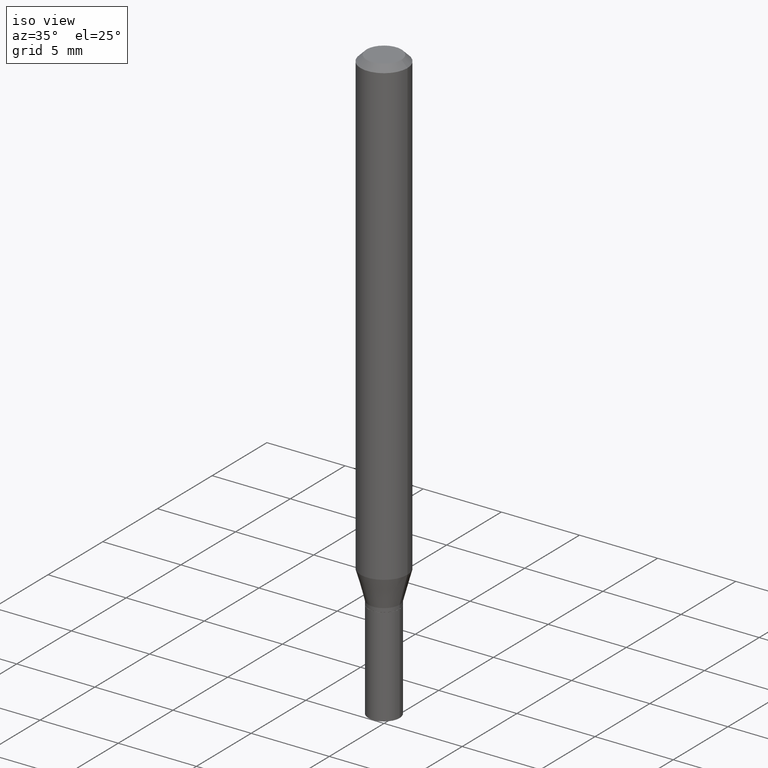
[diagram: clean part render]
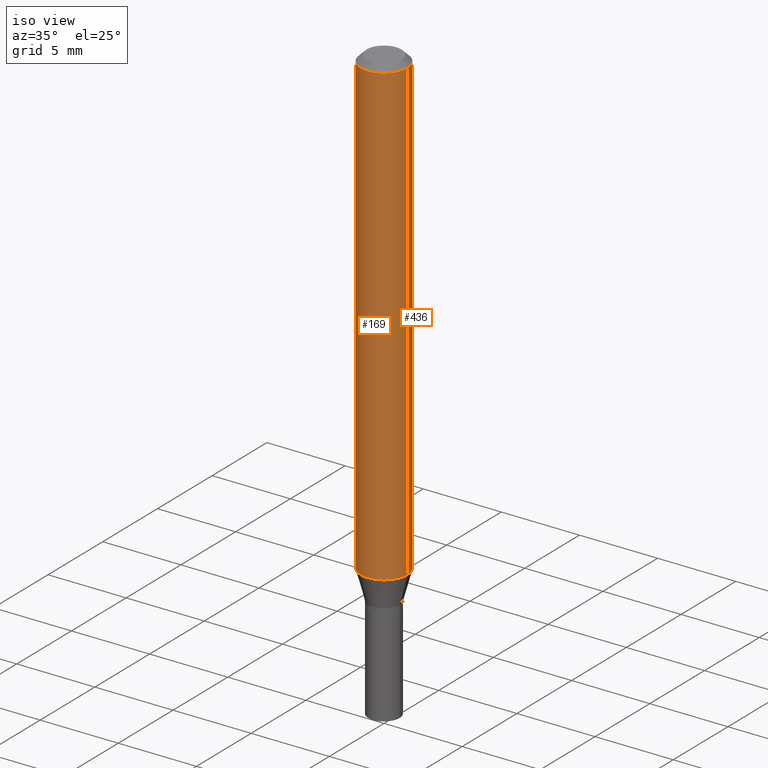
[diagram: same view with one multi-face feature highlighted, each face labeled with its STEP entity id]
A machine part, iso view. The highlighted faces form ONE feature: a constant-radius fillet chain: 2 tangent blend faces with common blend radius 1.4999 mm. The faces share edges in the B-rep.
Their STEP definitions:
[1] entity #436 (Cylinder):
#1 = VERTEX_POINT ( 'NONE', #180 ) ;
#4 = CIRCLE ( 'NONE', #404, 0.05904999999999999832 ) ;
#14 = ORIENTED_EDGE ( 'NONE', *, *, #362, .F. ) ;
#29 = DIRECTION ( 'NONE',  ( -2.445468806185136877E-29, 3.491481338843145188E-15, 1.000000000000000000 ) ) ;
#35 = AXIS2_PLACEMENT_3D ( 'NONE', #417, #253, #411 ) ;
#57 = CARTESIAN_POINT ( 'NONE',  ( -0.05905000000000002608, -1.646471236356701803E-15, -0.01499999999999999944 ) ) ;
#64 = CYLINDRICAL_SURFACE ( 'NONE', #35, 0.05905000000000000526 ) ;
#75 = DIRECTION ( 'NONE',  ( -2.445468806185136597E-29, 3.491481338843145583E-15, 1.000000000000000000 ) ) ;
#77 = EDGE_CURVE ( 'NONE', #1, #215, #268, .T. ) ;
#83 = DIRECTION ( 'NONE',  ( -2.445468806185136877E-29, 3.491481338843145188E-15, 1.000000000000000000 ) ) ;
#85 = CARTESIAN_POINT ( 'NONE',  ( -0.05905000000000000526, 4.195754854663391971E-16, -2.904631170795522242E-30 ) ) ;
#95 = AXIS2_PLACEMENT_3D ( 'NONE', #136, #75, #355 ) ;
#113 = CARTESIAN_POINT ( 'NONE',  ( 2.857477964771687293E-29, -4.079721223563434330E-15, -1.168478599090893244 ) ) ;
#130 = CARTESIAN_POINT ( 'NONE',  ( 0.05904999999999999832, -4.492065169680809250E-15, -1.168478599090893244 ) ) ;
#136 = CARTESIAN_POINT ( 'NONE',  ( 3.668203209277705088E-31, -5.237222008264718399E-17, -0.01499999999999999944 ) ) ;
#143 = VERTEX_POINT ( 'NONE', #130 ) ;
#180 = CARTESIAN_POINT ( 'NONE',  ( -0.05904999999999999832, -3.660145738097095626E-15, -1.168478599090893244 ) ) ;
#210 = DIRECTION ( 'NONE',  ( -2.445468806185136597E-29, 3.491481338843145583E-15, 1.000000000000000000 ) ) ;
#215 = VERTEX_POINT ( 'NONE', #57 ) ;
#251 = VECTOR ( 'NONE', #83, 39.37007874015748143 ) ;
#253 = DIRECTION ( 'NONE',  ( -2.445468806185136597E-29, 3.491481338843145583E-15, 1.000000000000000000 ) ) ;
#255 = LINE ( 'NONE', #400, #251 ) ;
#268 = LINE ( 'NONE', #85, #299 ) ;
#280 = ORIENTED_EDGE ( 'NONE', *, *, #399, .F. ) ;
#299 = VECTOR ( 'NONE', #29, 39.37007874015748143 ) ;
#302 = ORIENTED_EDGE ( 'NONE', *, *, #77, .T. ) ;
#308 = CARTESIAN_POINT ( 'NONE',  ( 0.05905000000000001914, -4.647161662000214077E-16, -0.01499999999999999944 ) ) ;
#324 = VERTEX_POINT ( 'NONE', #308 ) ;
#334 = FACE_OUTER_BOUND ( 'NONE', #444, .T. ) ;
#338 = CIRCLE ( 'NONE', #95, 0.05905000000000001914 ) ;
#355 = DIRECTION ( 'NONE',  ( 1.000000000000000000, -6.982962677686266711E-15, 0.000000000000000000 ) ) ;
#362 = EDGE_CURVE ( 'NONE', #143, #324, #255, .T. ) ;
#395 = DIRECTION ( 'NONE',  ( 1.000000000000000000, -6.982962677686273021E-15, 0.000000000000000000 ) ) ;
#399 = EDGE_CURVE ( 'NONE', #324, #215, #338, .T. ) ;
#400 = CARTESIAN_POINT ( 'NONE',  ( 0.05905000000000000526, -4.123439461173741313E-16, 2.879382386107500571E-30 ) ) ;
#404 = AXIS2_PLACEMENT_3D ( 'NONE', #113, #210, #395 ) ;
#411 = DIRECTION ( 'NONE',  ( 1.000000000000000000, -6.982962677686267499E-15, 4.876176775795936353E-29 ) ) ;
#417 = CARTESIAN_POINT ( 'NONE',  ( 0.000000000000000000, 0.000000000000000000, 0.000000000000000000 ) ) ;
#436 = ADVANCED_FACE ( 'NONE', ( #334 ), #64, .T. ) ;
#444 = EDGE_LOOP ( 'NONE', ( #450, #302, #280, #14 ) ) ;
#450 = ORIENTED_EDGE ( 'NONE', *, *, #466, .T. ) ;
#466 = EDGE_CURVE ( 'NONE', #143, #1, #4, .T. ) ;
[2] entity #169 (Cylinder):
#1 = VERTEX_POINT ( 'NONE', #180 ) ;
#24 = CYLINDRICAL_SURFACE ( 'NONE', #351, 0.05905000000000000526 ) ;
#29 = DIRECTION ( 'NONE',  ( -2.445468806185136877E-29, 3.491481338843145188E-15, 1.000000000000000000 ) ) ;
#50 = CIRCLE ( 'NONE', #167, 0.05904999999999999832 ) ;
#55 = AXIS2_PLACEMENT_3D ( 'NONE', #287, #110, #290 ) ;
#57 = CARTESIAN_POINT ( 'NONE',  ( -0.05905000000000002608, -1.646471236356701803E-15, -0.01499999999999999944 ) ) ;
#61 = DIRECTION ( 'NONE',  ( 1.000000000000000000, -6.982962677686273021E-15, 0.000000000000000000 ) ) ;
#77 = EDGE_CURVE ( 'NONE', #1, #215, #268, .T. ) ;
#83 = DIRECTION ( 'NONE',  ( -2.445468806185136877E-29, 3.491481338843145188E-15, 1.000000000000000000 ) ) ;
#85 = CARTESIAN_POINT ( 'NONE',  ( -0.05905000000000000526, 4.195754854663391971E-16, -2.904631170795522242E-30 ) ) ;
#96 = DIRECTION ( 'NONE',  ( -2.445468806185136597E-29, 3.491481338843145583E-15, 1.000000000000000000 ) ) ;
#110 = DIRECTION ( 'NONE',  ( -2.445468806185136597E-29, 3.491481338843145583E-15, 1.000000000000000000 ) ) ;
#114 = ORIENTED_EDGE ( 'NONE', *, *, #410, .F. ) ;
#129 = DIRECTION ( 'NONE',  ( 1.000000000000000000, -6.982962677686267499E-15, 4.876176775795936353E-29 ) ) ;
#130 = CARTESIAN_POINT ( 'NONE',  ( 0.05904999999999999832, -4.492065169680809250E-15, -1.168478599090893244 ) ) ;
#143 = VERTEX_POINT ( 'NONE', #130 ) ;
#160 = DIRECTION ( 'NONE',  ( -2.445468806185136597E-29, 3.491481338843145583E-15, 1.000000000000000000 ) ) ;
#162 = CARTESIAN_POINT ( 'NONE',  ( 0.000000000000000000, 0.000000000000000000, 0.000000000000000000 ) ) ;
#167 = AXIS2_PLACEMENT_3D ( 'NONE', #214, #160, #61 ) ;
#169 = ADVANCED_FACE ( 'NONE', ( #409 ), #24, .T. ) ;
#180 = CARTESIAN_POINT ( 'NONE',  ( -0.05904999999999999832, -3.660145738097095626E-15, -1.168478599090893244 ) ) ;
#209 = ORIENTED_EDGE ( 'NONE', *, *, #263, .T. ) ;
#214 = CARTESIAN_POINT ( 'NONE',  ( 2.857477964771687293E-29, -4.079721223563434330E-15, -1.168478599090893244 ) ) ;
#215 = VERTEX_POINT ( 'NONE', #57 ) ;
#244 = EDGE_LOOP ( 'NONE', ( #360, #209, #385, #114 ) ) ;
#251 = VECTOR ( 'NONE', #83, 39.37007874015748143 ) ;
#255 = LINE ( 'NONE', #400, #251 ) ;
#263 = EDGE_CURVE ( 'NONE', #1, #143, #50, .T. ) ;
#268 = LINE ( 'NONE', #85, #299 ) ;
#287 = CARTESIAN_POINT ( 'NONE',  ( 3.668203209277705088E-31, -5.237222008264718399E-17, -0.01499999999999999944 ) ) ;
#290 = DIRECTION ( 'NONE',  ( 1.000000000000000000, -6.982962677686266711E-15, 0.000000000000000000 ) ) ;
#299 = VECTOR ( 'NONE', #29, 39.37007874015748143 ) ;
#308 = CARTESIAN_POINT ( 'NONE',  ( 0.05905000000000001914, -4.647161662000214077E-16, -0.01499999999999999944 ) ) ;
#324 = VERTEX_POINT ( 'NONE', #308 ) ;
#351 = AXIS2_PLACEMENT_3D ( 'NONE', #162, #96, #129 ) ;
#360 = ORIENTED_EDGE ( 'NONE', *, *, #77, .F. ) ;
#362 = EDGE_CURVE ( 'NONE', #143, #324, #255, .T. ) ;
#369 = CIRCLE ( 'NONE', #55, 0.05905000000000001914 ) ;
#385 = ORIENTED_EDGE ( 'NONE', *, *, #362, .T. ) ;
#400 = CARTESIAN_POINT ( 'NONE',  ( 0.05905000000000000526, -4.123439461173741313E-16, 2.879382386107500571E-30 ) ) ;
#409 = FACE_OUTER_BOUND ( 'NONE', #244, .T. ) ;
#410 = EDGE_CURVE ( 'NONE', #215, #324, #369, .T. ) ;